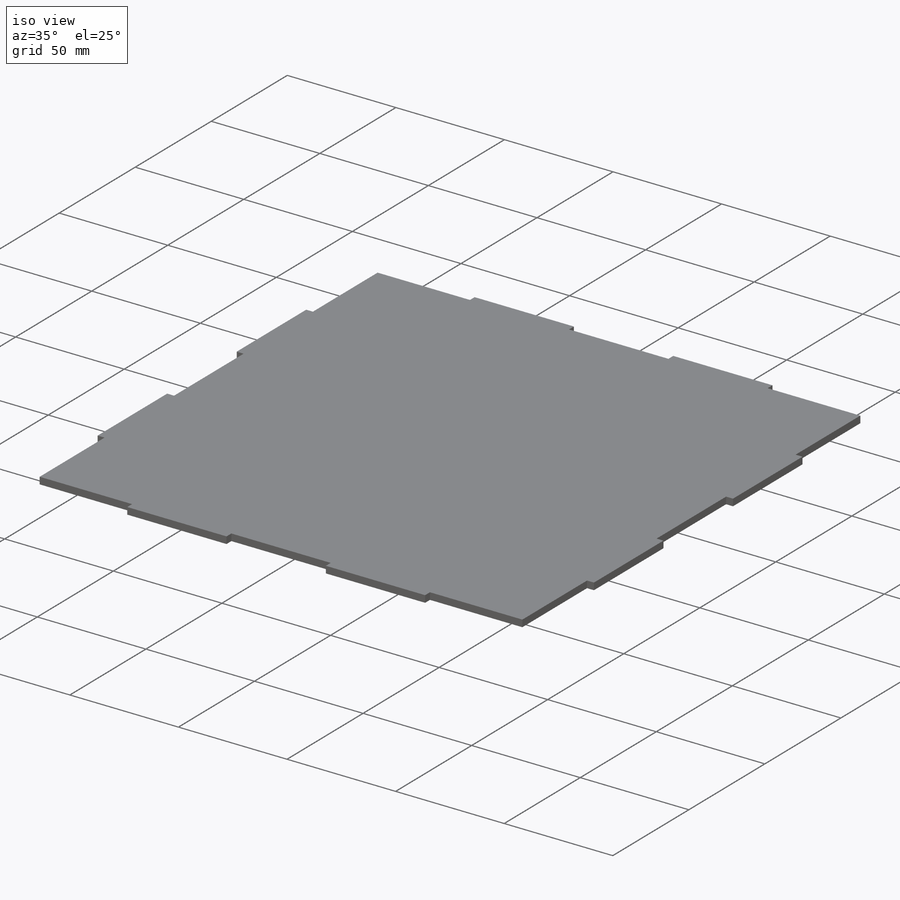
[diagram: iso view]
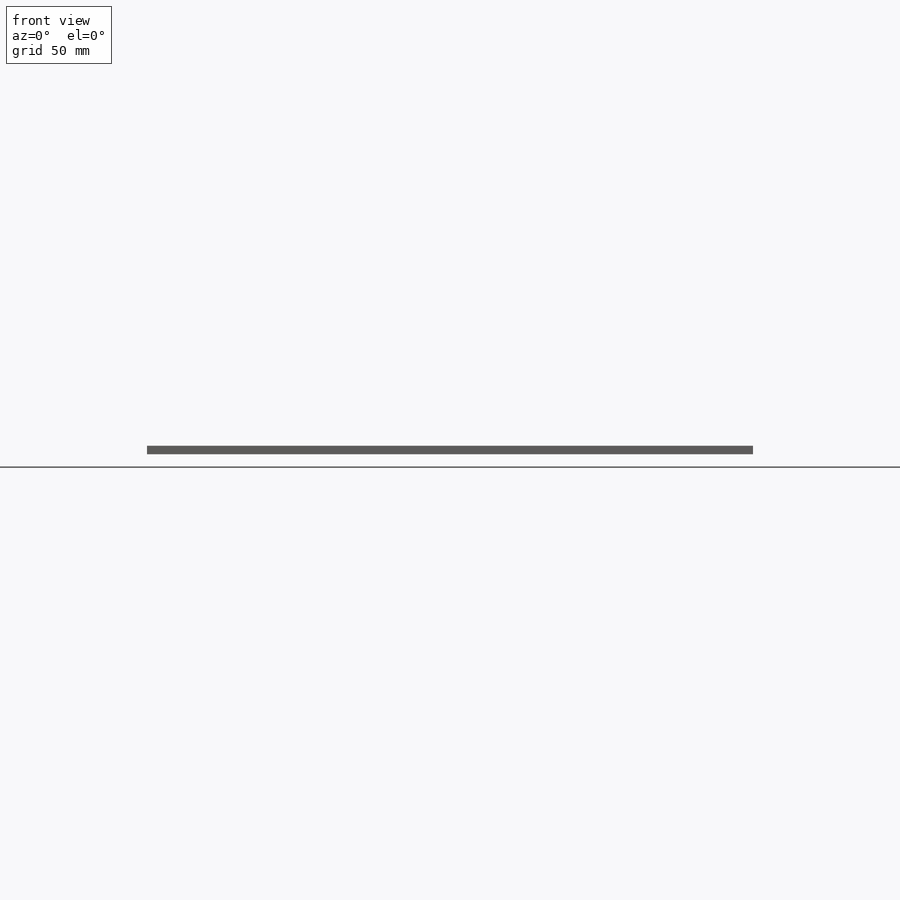
[diagram: front view]
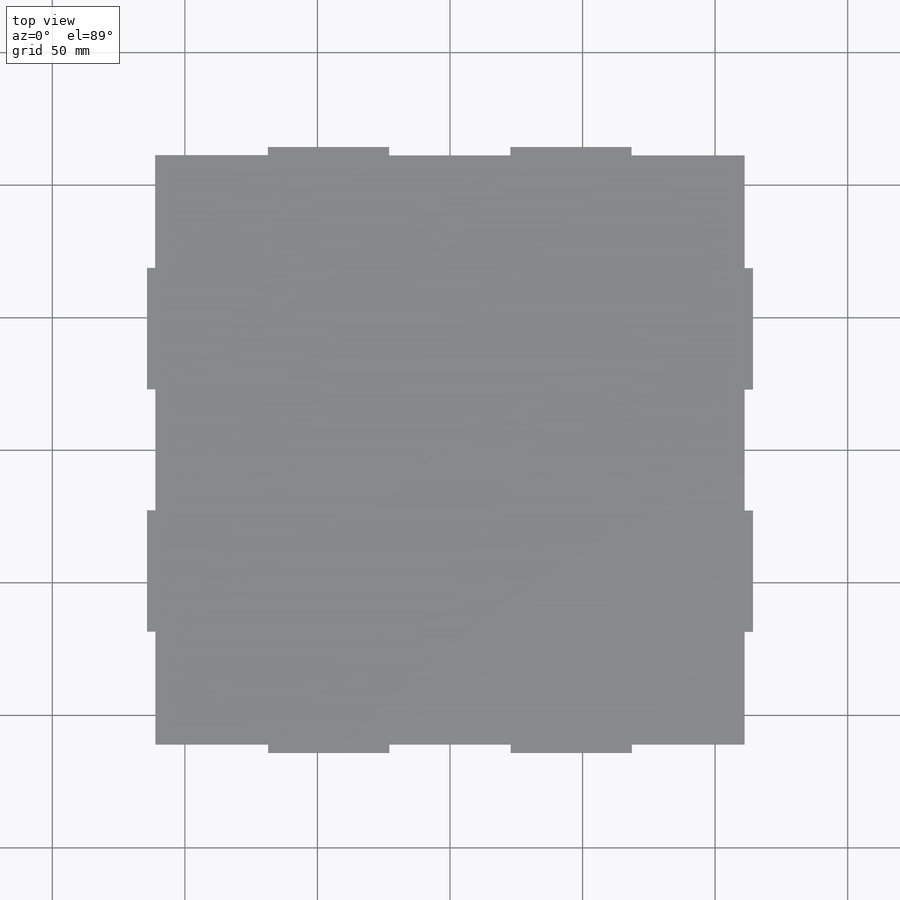
[diagram: top view]
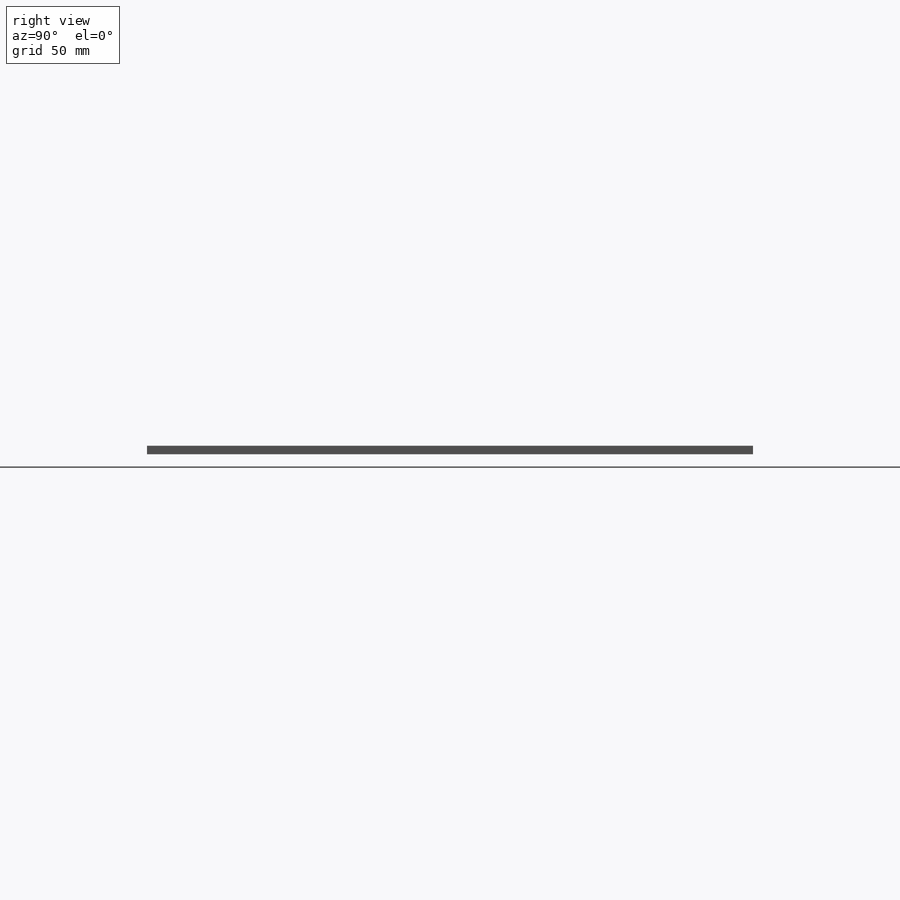
[diagram: right view]
SOLIDWORKS PART (.sldprt)
format: sldprt  version: not decoded by parser v0  size: 349,184 bytes
history: native  units: mm
features: sketch x3, material x1, extrude x1, cut_extrude x1 (+11 scaffold rows collapsed)
feature tree (17):
  scaffold x11  (default folders/planes/origin — collapsed)
  material  "Material <not specified>"
  sketch  "Sketch1"  dims[D1=228.6mm D2=228.6mm]
  extrude  "Boss-Extrude1"  Depth=3.175mm
  sketch  "Sketch3"  dims[c1.D1=76.2mm c1.D2=45.72mm c1.D3=6.35mm c1.D4=0.0mm c1.D5=45.72mm c1.D6=76.2mm c1.D7=3.175mm c1.D8=0.0mm c1.D9=0.0mm c1.D10=6.35mm c1.D11=0.0mm c1.D12=76.2mm c2.D6=45.72mm c2.D9=6.35mm c2.D8=91.44mm c3.D9=6.35mm c3.D10=91.44mm c3.D12=6.35mm c3.D13=91.44mm c3.D14=45.72mm c3.D15=45.72mm c3.D16=0.0mm c3.D17=6.35mm c3.D18=91.44mm c3.D19=91.44mm c3.D20=91.44mm c3.D21=6.35mm c3.D22=0.0mm c3.D1=0.0mm c3.D2=0.0mm c3.D3=0.0mm c3.D8=0.0mm c4.D9=45.72mm c4.D10=45.72mm c4.D11=3.175mm c4.D12=45.72mm c4.D13=~45.824721mm c4.D14=0.0mm c4.D15=45.72mm c4.D16=45.72mm c4.D17=45.72mm c4.D18=~45.824721mm c4.D19=45.72mm c4.D20=45.72mm c4.D21=45.72mm c5.D11=45.72mm c5.D21=45.72mm c5.D22=3.175mm c5.D23=45.72mm c5.D24=45.72mm c5.D25=45.72mm c5.D26=45.72mm c5.D27=45.72mm c5.D28=3.175mm c5.D29=45.72mm]
  cut_extrude  "Cut-Extrude1"  Depth=6.35mm
  sketch  "Sketch4"  dims[D1=3.81mm D2=1.27mm]
decode coverage: 5 of 5 modeling features carry decoded parameters
note: ~ marks probable driven/reference dimensions
note: suppression state not decoded; provenance and decode notes live in map.json
